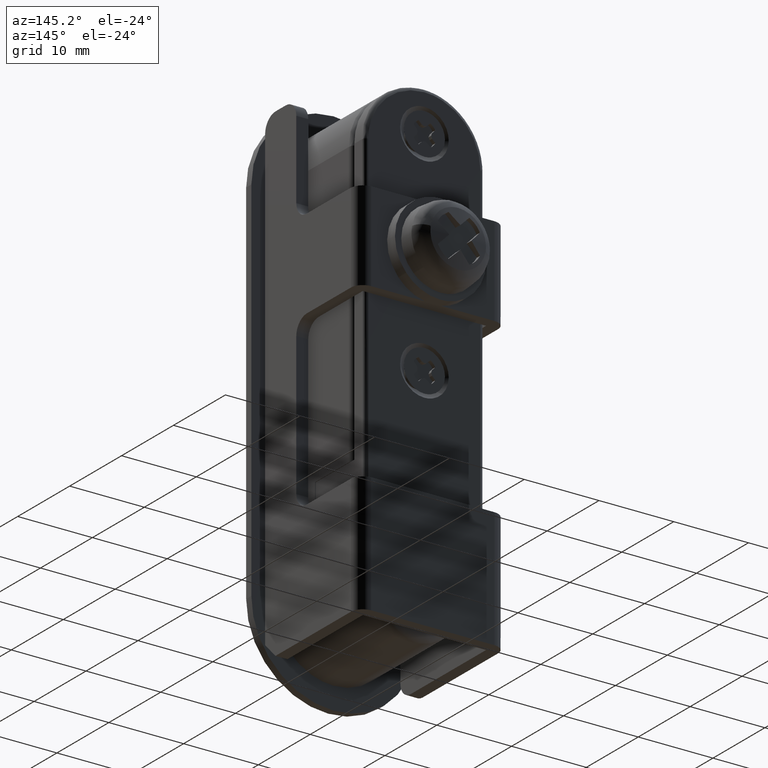
[diagram: clean part render]
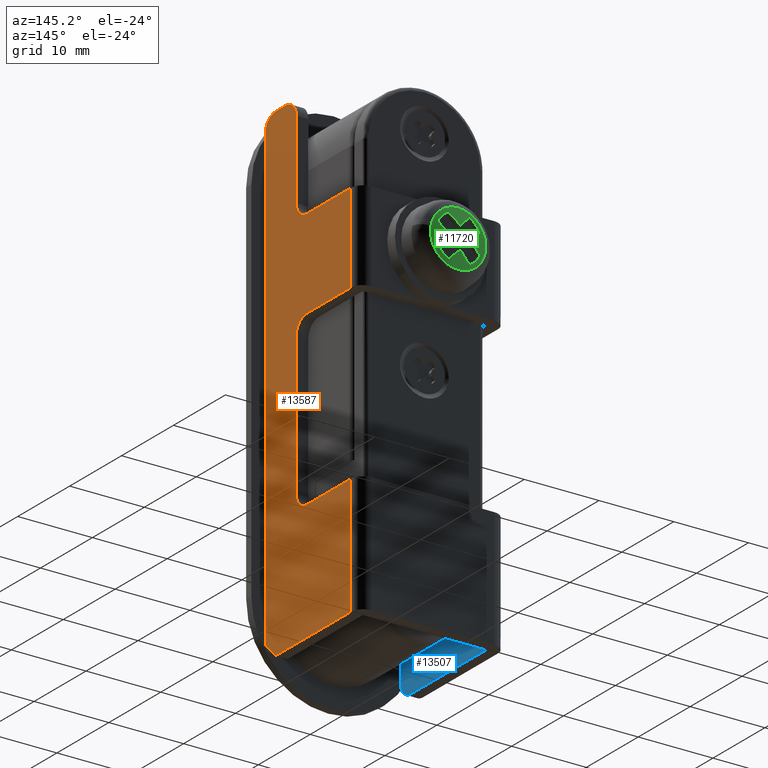
[diagram: same view with three faces highlighted in distinct colors, each labeled with its STEP entity id]
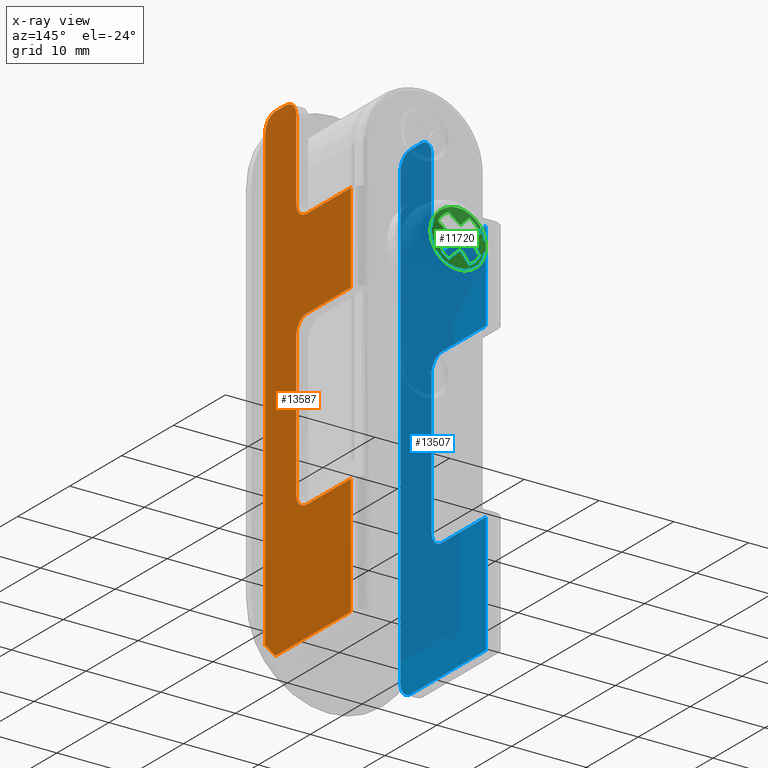
[diagram: x-ray of the same camera — body ghosted, the three highlighted faces saturated]
A machine part, auxiliary view with three faces highlighted in distinct colors.
The next image is the same camera in x-ray (body ghosted, the three faces saturated) — at least one of them is partly hidden behind the body in this view.
Their STEP definitions:

[orange] entity #13587 — the highlighted face is a freeform B-spline surface patch.
#12319=CARTESIAN_POINT('',(9.850000000089731,1.500000000049254,21.000000000388500));
#12320=VERTEX_POINT('',#12319);
#12326=CARTESIAN_POINT('',(9.850000000089731,1.500000000036180,2.000000000367890));
#12327=VERTEX_POINT('',#12326);
#12328=CARTESIAN_POINT('',(9.850000000089731,1.500000000036180,2.000000000367890));
#12329=CARTESIAN_POINT('',(9.850000000089731,1.500000000049254,21.000000000388500));
#12330=QUASI_UNIFORM_CURVE('',1,(#12328,#12329),.UNSPECIFIED.,.F.,.U.);
#12331=EDGE_CURVE('',#12327,#12320,#12330,.T.);
#12357=CARTESIAN_POINT('',(9.850000000089731,3.500000000034760,3.676881E-010));
#12358=VERTEX_POINT('',#12357);
#12378=CARTESIAN_POINT('',(9.850000000089731,1.500000000036180,2.000000000367890));
#12379=CARTESIAN_POINT('',(9.850000000089738,1.499984994598414,1.869106311978964));
#12380=CARTESIAN_POINT('',(9.850000000089725,1.527394882572928,1.590943611899807));
#12381=CARTESIAN_POINT('',(9.850000000089745,1.641735562585060,1.229986841329023));
#12382=CARTESIAN_POINT('',(9.850000000089731,1.835105440489092,0.868246416003327));
#12383=CARTESIAN_POINT('',(9.850000000089722,2.148769064056445,0.485820147811216));
#12384=CARTESIAN_POINT('',(9.850000000089763,2.604358348147121,0.181376499938010));
#12385=CARTESIAN_POINT('',(9.850000000089699,3.090957658884036,0.027417052987410));
#12386=CARTESIAN_POINT('',(9.850000000089787,3.369106552272606,-0.000015096700052));
#12387=CARTESIAN_POINT('',(9.850000000089731,3.500000000034760,3.676881E-010));
#12388=B_SPLINE_CURVE_WITH_KNOTS('',3,(#12378,#12379,#12380,#12381,#12382,#12383,#12384,#12385,#12386,#12387),.UNSPECIFIED.,.F.,.U.,(4,1,1,1,1,1,1,4),(0.000000054409977,0.392692200529610,0.834507428879825,1.129053298827527,1.619919496222785,2.307164564596149,2.748979510271204,3.141671488669639),.UNSPECIFIED.);
#12389=EDGE_CURVE('',#12327,#12358,#12388,.T.);
#12444=CARTESIAN_POINT('',(9.850000000089780,-4.499999999950746,-13.999999999576980));
#12445=VERTEX_POINT('',#12444);
#12451=CARTESIAN_POINT('',(9.850000000089731,-4.499999999950746,47.500000000374300));
#12452=VERTEX_POINT('',#12451);
#12453=CARTESIAN_POINT('',(9.850000000089731,-4.499999999950746,47.500000000374300));
#12454=CARTESIAN_POINT('',(9.850000000089780,-4.499999999950746,-13.999999999576980));
#12455=QUASI_UNIFORM_CURVE('',1,(#12453,#12454),.UNSPECIFIED.,.F.,.U.);
#12456=EDGE_CURVE('',#12452,#12445,#12455,.T.);
#12496=CARTESIAN_POINT('',(9.850000000089731,-2.499999999950746,49.500000000374300));
#12497=VERTEX_POINT('',#12496);
#12498=CARTESIAN_POINT('',(9.850000000089731,-2.499999999950746,49.500000000374300));
#12499=CARTESIAN_POINT('',(9.850000000089734,-2.712727556908472,49.500116170624217));
#12500=CARTESIAN_POINT('',(9.850000000089729,-3.056259100858302,49.444643357805347));
#12501=CARTESIAN_POINT('',(9.850000000089745,-3.492159805204128,49.251386304483923));
#12502=CARTESIAN_POINT('',(9.850000000089706,-3.814767357079327,49.024181566197278));
#12503=CARTESIAN_POINT('',(9.850000000089722,-4.086860187340050,48.738400088833309));
#12504=CARTESIAN_POINT('',(9.850000000089739,-4.280357651125520,48.432803134382382));
#12505=CARTESIAN_POINT('',(9.850000000089729,-4.449925496113697,48.023535834222997));
#12506=CARTESIAN_POINT('',(9.850000000089725,-4.500114318585584,47.712727915922962));
#12507=CARTESIAN_POINT('',(9.850000000089731,-4.499999999950746,47.500000000374300));
#12508=B_SPLINE_CURVE_WITH_KNOTS('',3,(#12498,#12499,#12500,#12501,#12502,#12503,#12504,#12505,#12506,#12507),.UNSPECIFIED.,.F.,.U.,(4,1,1,1,1,1,1,4),(0.000000054412217,0.638149096915154,1.030871407060215,1.423581817503625,1.816261475136498,2.208983504591311,2.503523754813277,3.141671488670173),.UNSPECIFIED.);
#12509=EDGE_CURVE('',#12497,#12452,#12508,.T.);
#12532=CARTESIAN_POINT('',(9.850000000089731,-0.499999999971922,49.500000000374300));
#12533=VERTEX_POINT('',#12532);
#12534=CARTESIAN_POINT('',(9.850000000089731,-0.499999999971922,49.500000000374300));
#12535=CARTESIAN_POINT('',(9.850000000089731,-2.499999999950746,49.500000000374300));
#12536=QUASI_UNIFORM_CURVE('',1,(#12534,#12535),.UNSPECIFIED.,.F.,.U.);
#12537=EDGE_CURVE('',#12533,#12497,#12536,.T.);
#12577=CARTESIAN_POINT('',(9.850000000089731,1.500000000028079,47.500000000374300));
#12578=VERTEX_POINT('',#12577);
#12579=CARTESIAN_POINT('',(9.850000000089731,1.500000000028079,47.500000000374300));
#12580=CARTESIAN_POINT('',(9.850000000089725,1.500014807483300,47.630893907357652));
#12581=CARTESIAN_POINT('',(9.850000000089757,1.472604787105215,47.909056141708461));
#12582=CARTESIAN_POINT('',(9.850000000089711,1.358264443506781,48.270013273980467));
#12583=CARTESIAN_POINT('',(9.850000000089743,1.164904708573855,48.631768437473788));
#12584=CARTESIAN_POINT('',(9.850000000089750,0.913917864066613,48.937616612797733));
#12585=CARTESIAN_POINT('',(9.850000000089711,0.576897076744367,49.200588480369163));
#12586=CARTESIAN_POINT('',(9.850000000089764,0.121642298828110,49.429812520241320));
#12587=CARTESIAN_POINT('',(9.850000000089722,-0.254523831925844,49.500223144607190));
#12588=CARTESIAN_POINT('',(9.850000000089731,-0.499999999971922,49.500000000374300));
#12589=B_SPLINE_CURVE_WITH_KNOTS('',3,(#12579,#12580,#12581,#12582,#12583,#12584,#12585,#12586,#12587,#12588),.UNSPECIFIED.,.F.,.U.,(4,1,1,1,1,1,1,4),(0.000000054412644,0.392692200531866,0.834507428881887,1.129053298829563,1.619919496224594,2.012618185352789,2.405342694808420,3.141671488670133),.UNSPECIFIED.);
#12590=EDGE_CURVE('',#12578,#12533,#12589,.T.);
#12613=CARTESIAN_POINT('',(9.850000000089731,1.500000000029359,37.000000000388397));
#12614=VERTEX_POINT('',#12613);
#12615=CARTESIAN_POINT('',(9.850000000089731,1.500000000029359,37.000000000388397));
#12616=CARTESIAN_POINT('',(9.850000000089731,1.500000000028079,47.500000000374300));
#12617=QUASI_UNIFORM_CURVE('',1,(#12615,#12616),.UNSPECIFIED.,.F.,.U.);
#12618=EDGE_CURVE('',#12614,#12578,#12617,.T.);
#12808=CARTESIAN_POINT('',(9.850000000089780,12.000000000058160,3.630478E-010));
#12809=VERTEX_POINT('',#12808);
#12810=CARTESIAN_POINT('',(9.850000000089780,12.000000000058160,3.630478E-010));
#12811=CARTESIAN_POINT('',(9.850000000089731,3.500000000034760,3.676881E-010));
#12812=QUASI_UNIFORM_CURVE('',1,(#12810,#12811),.UNSPECIFIED.,.F.,.U.);
#12813=EDGE_CURVE('',#12809,#12358,#12812,.T.);
#12836=CARTESIAN_POINT('',(9.850000000089780,-2.499999999950746,-15.999999999577099));
#12837=VERTEX_POINT('',#12836);
#12838=CARTESIAN_POINT('',(9.850000000089780,12.000000000075760,-15.999999999578201));
#12839=VERTEX_POINT('',#12838);
#12840=CARTESIAN_POINT('',(9.850000000089780,-2.499999999950746,-15.999999999577099));
#12841=CARTESIAN_POINT('',(9.850000000089780,12.000000000075760,-15.999999999578201));
#12842=QUASI_UNIFORM_CURVE('',1,(#12840,#12841),.UNSPECIFIED.,.F.,.U.);
#12843=EDGE_CURVE('',#12837,#12839,#12842,.T.);
#13173=CARTESIAN_POINT('',(9.850000000089780,-4.499999999950746,-13.999999999576980));
#13174=CARTESIAN_POINT('',(9.850000000089780,-2.499999999950746,-15.999999999577099));
#13175=QUASI_UNIFORM_CURVE('',1,(#13173,#13174),.UNSPECIFIED.,.F.,.U.);
#13176=EDGE_CURVE('',#12445,#12837,#13175,.T.);
#13242=CARTESIAN_POINT('',(9.850000000089780,12.000000000049280,23.000000000397002));
#13243=VERTEX_POINT('',#13242);
#13263=CARTESIAN_POINT('',(9.850000000089780,12.000000000049280,35.000000000397208));
#13264=VERTEX_POINT('',#13263);
#13277=CARTESIAN_POINT('',(9.850000000089780,12.000000000049280,23.000000000397002));
#13278=CARTESIAN_POINT('',(9.850000000089780,12.000000000049280,35.000000000397208));
#13279=QUASI_UNIFORM_CURVE('',1,(#13277,#13278),.UNSPECIFIED.,.F.,.U.);
#13280=EDGE_CURVE('',#13243,#13264,#13279,.T.);
#13302=CARTESIAN_POINT('',(9.850000000089780,12.000000000075760,-15.999999999578201));
#13303=CARTESIAN_POINT('',(9.850000000089780,12.000000000058160,3.630478E-010));
#13304=QUASI_UNIFORM_CURVE('',1,(#13302,#13303),.UNSPECIFIED.,.F.,.U.);
#13305=EDGE_CURVE('',#12839,#12809,#13304,.T.);
#13528=CARTESIAN_POINT('',(9.850000000089780,-5.324174967971869,52.771724873420233));
#13529=CARTESIAN_POINT('',(9.850000000089780,12.824175410661370,52.771724873420233));
#13530=CARTESIAN_POINT('',(9.850000000089780,-5.324174967971869,-19.271726629471019));
#13531=CARTESIAN_POINT('',(9.850000000089780,12.824175410661370,-19.271726629471019));
#13532=B_SPLINE_SURFACE_WITH_KNOTS('',1,1,((#13528,#13530),(#13529,#13531)),.UNSPECIFIED.,.F.,.F.,.U.,(2,2),(2,2),(0.0,18.148350378633239),(0.0,72.043451502891244),.UNSPECIFIED.);
#13533=ORIENTED_EDGE('',*,*,#12456,.T.);
#13534=ORIENTED_EDGE('',*,*,#13176,.T.);
#13535=ORIENTED_EDGE('',*,*,#12843,.T.);
#13536=ORIENTED_EDGE('',*,*,#13305,.T.);
#13537=ORIENTED_EDGE('',*,*,#12813,.T.);
#13538=ORIENTED_EDGE('',*,*,#12389,.F.);
#13539=ORIENTED_EDGE('',*,*,#12331,.T.);
#13540=CARTESIAN_POINT('',(9.850000000089731,3.500000000049170,23.000000000388500));
#13541=VERTEX_POINT('',#13540);
#13542=CARTESIAN_POINT('',(9.850000000089731,3.500000000049170,23.000000000388500));
#13543=CARTESIAN_POINT('',(9.850000000089738,3.320006687696226,23.000066302652609));
#13544=CARTESIAN_POINT('',(9.850000000089729,3.041885127216607,22.962178378040331));
#13545=CARTESIAN_POINT('',(9.850000000089729,2.655690986413911,22.823980072735669));
#13546=CARTESIAN_POINT('',(9.850000000089750,2.283677432699945,22.613359871885699));
#13547=CARTESIAN_POINT('',(9.850000000089718,1.948289041281439,22.293999029544580));
#13548=CARTESIAN_POINT('',(9.850000000089722,1.719646558237900,21.932797831038460));
#13549=CARTESIAN_POINT('',(9.850000000089725,1.550074189398897,21.523536463461799));
#13550=CARTESIAN_POINT('',(9.850000000089679,1.499886231826632,21.212728225495091));
#13551=CARTESIAN_POINT('',(9.850000000089731,1.500000000049254,21.000000000388500));
#13552=B_SPLINE_CURVE_WITH_KNOTS('',3,(#13542,#13543,#13544,#13545,#13546,#13547,#13548,#13549,#13550,#13551),.UNSPECIFIED.,.F.,.U.,(4,1,1,1,1,1,1,4),(0.000000054410605,0.539966365235176,0.834507428880339,1.227232851409178,1.816261475136158,2.208983504591194,2.503523754813182,3.141671488670062),.UNSPECIFIED.);
#13553=EDGE_CURVE('',#13541,#12320,#13552,.T.);
#13554=ORIENTED_EDGE('',*,*,#13553,.F.);
#13555=CARTESIAN_POINT('',(9.850000000089731,3.500000000049170,23.000000000388500));
#13556=CARTESIAN_POINT('',(9.850000000089780,12.000000000049280,23.000000000397002));
#13557=QUASI_UNIFORM_CURVE('',1,(#13555,#13556),.UNSPECIFIED.,.F.,.U.);
#13558=EDGE_CURVE('',#13541,#13243,#13557,.T.);
#13559=ORIENTED_EDGE('',*,*,#13558,.T.);
#13560=ORIENTED_EDGE('',*,*,#13280,.T.);
#13561=CARTESIAN_POINT('',(9.850000000089731,3.500000000031575,35.000000000388802));
#13562=VERTEX_POINT('',#13561);
#13563=CARTESIAN_POINT('',(9.850000000089780,12.000000000049280,35.000000000397208));
#13564=CARTESIAN_POINT('',(9.850000000089731,3.500000000031575,35.000000000388802));
#13565=QUASI_UNIFORM_CURVE('',1,(#13563,#13564),.UNSPECIFIED.,.F.,.U.);
#13566=EDGE_CURVE('',#13264,#13562,#13565,.T.);
#13567=ORIENTED_EDGE('',*,*,#13566,.T.);
#13568=CARTESIAN_POINT('',(9.850000000089731,1.500000000029359,37.000000000388397));
#13569=CARTESIAN_POINT('',(9.850000000089729,1.499884098323229,36.787271884995867));
#13570=CARTESIAN_POINT('',(9.850000000089732,1.555356671448052,36.443741328800222));
#13571=CARTESIAN_POINT('',(9.850000000089739,1.748613345025621,36.007840513279888));
#13572=CARTESIAN_POINT('',(9.850000000089713,1.975818712095903,35.685232295627607));
#13573=CARTESIAN_POINT('',(9.850000000089743,2.261600375961293,35.413139857271268));
#13574=CARTESIAN_POINT('',(9.850000000089722,2.567196012363572,35.219642585638198));
#13575=CARTESIAN_POINT('',(9.850000000089766,2.976465274556203,35.050073914458970));
#13576=CARTESIAN_POINT('',(9.850000000089681,3.287271057241965,34.999886058818980));
#13577=CARTESIAN_POINT('',(9.850000000089731,3.500000000031575,35.000000000388802));
#13578=B_SPLINE_CURVE_WITH_KNOTS('',3,(#13568,#13569,#13570,#13571,#13572,#13573,#13574,#13575,#13576,#13577),.UNSPECIFIED.,.F.,.U.,(4,1,1,1,1,1,1,4),(0.000000054406451,0.638149096911394,1.030871407057555,1.423581817501873,1.816261475135568,2.208983504591103,2.503523754813400,3.141671488670932),.UNSPECIFIED.);
#13579=EDGE_CURVE('',#12614,#13562,#13578,.T.);
#13580=ORIENTED_EDGE('',*,*,#13579,.F.);
#13581=ORIENTED_EDGE('',*,*,#12618,.T.);
#13582=ORIENTED_EDGE('',*,*,#12590,.T.);
#13583=ORIENTED_EDGE('',*,*,#12537,.T.);
#13584=ORIENTED_EDGE('',*,*,#12509,.T.);
#13585=EDGE_LOOP('',(#13533,#13534,#13535,#13536,#13537,#13538,#13539,#13554,#13559,#13560,#13567,#13580,#13581,#13582,#13583,#13584));
#13586=FACE_OUTER_BOUND('',#13585,.T.);
#13587=ADVANCED_FACE('',(#13586),#13532,.F.);

[blue] entity #13507 — the highlighted face is a freeform B-spline surface patch.
#12283=CARTESIAN_POINT('',(-8.249999999878890,12.000000000058160,3.630478E-010));
#12284=VERTEX_POINT('',#12283);
#12290=CARTESIAN_POINT('',(-8.249999999878890,12.000000000075760,-15.999999999578201));
#12291=VERTEX_POINT('',#12290);
#12292=CARTESIAN_POINT('',(-8.249999999878890,12.000000000075760,-15.999999999578201));
#12293=CARTESIAN_POINT('',(-8.249999999878890,12.000000000058160,3.630478E-010));
#12294=QUASI_UNIFORM_CURVE('',1,(#12292,#12293),.UNSPECIFIED.,.F.,.U.);
#12295=EDGE_CURVE('',#12291,#12284,#12294,.T.);
#12642=CARTESIAN_POINT('',(-8.249999999878849,3.500000000049170,23.000000000388500));
#12643=VERTEX_POINT('',#12642);
#12644=CARTESIAN_POINT('',(-8.249999999878849,1.500000000049256,21.000000000388500));
#12645=VERTEX_POINT('',#12644);
#12646=CARTESIAN_POINT('',(-8.249999999878849,3.500000000049170,23.000000000388500));
#12647=CARTESIAN_POINT('',(-8.249999999878847,3.320007174509709,23.000065977941471));
#12648=CARTESIAN_POINT('',(-8.249999999878861,3.041883600465573,22.962179396403801));
#12649=CARTESIAN_POINT('',(-8.249999999878826,2.655680854213044,22.823991638127051));
#12650=CARTESIAN_POINT('',(-8.249999999878893,2.340951967477180,22.645712019352299));
#12651=CARTESIAN_POINT('',(-8.249999999878819,2.042185232806982,22.387966490191172));
#12652=CARTESIAN_POINT('',(-8.249999999878860,1.748720539027955,22.012131263663179));
#12653=CARTESIAN_POINT('',(-8.249999999878874,1.546365724212139,21.539981150195100));
#12654=CARTESIAN_POINT('',(-8.249999999878805,1.499977789193953,21.163616262940941));
#12655=CARTESIAN_POINT('',(-8.249999999878849,1.500000000049256,21.000000000388500));
#12656=B_SPLINE_CURVE_WITH_KNOTS('',3,(#12646,#12647,#12648,#12649,#12650,#12651,#12652,#12653,#12654,#12655),.UNSPECIFIED.,.F.,.U.,(4,1,1,1,1,1,1,4),(0.000000054410605,0.539966365235176,0.834507428880339,1.227232851409178,1.619919496223200,2.012618185351761,2.650798048094276,3.141671488670062),.UNSPECIFIED.);
#12657=EDGE_CURVE('',#12643,#12645,#12656,.T.);
#12695=CARTESIAN_POINT('',(-8.249999999878849,1.500000000036181,2.000000000367890));
#12696=VERTEX_POINT('',#12695);
#12697=CARTESIAN_POINT('',(-8.249999999878849,1.500000000036181,2.000000000367890));
#12698=CARTESIAN_POINT('',(-8.249999999878849,1.500000000049256,21.000000000388500));
#12699=QUASI_UNIFORM_CURVE('',1,(#12697,#12698),.UNSPECIFIED.,.F.,.U.);
#12700=EDGE_CURVE('',#12696,#12645,#12699,.T.);
#12731=CARTESIAN_POINT('',(-8.249999999878849,3.500000000034761,3.676881E-010));
#12732=VERTEX_POINT('',#12731);
#12733=CARTESIAN_POINT('',(-8.249999999878849,1.500000000036181,2.000000000367890));
#12734=CARTESIAN_POINT('',(-8.249999999878851,1.499934889875306,1.820008973315520));
#12735=CARTESIAN_POINT('',(-8.249999999878847,1.542263331148013,1.509154239738384));
#12736=CARTESIAN_POINT('',(-8.249999999878847,1.690206540662509,1.125658543325652));
#12737=CARTESIAN_POINT('',(-8.249999999878860,1.875789630152411,0.816076393680036));
#12738=CARTESIAN_POINT('',(-8.249999999878837,2.176387786480334,0.467358495723577));
#12739=CARTESIAN_POINT('',(-8.249999999878879,2.604356317562502,0.181382289969196));
#12740=CARTESIAN_POINT('',(-8.249999999878812,3.090958050478742,0.027416035071350));
#12741=CARTESIAN_POINT('',(-8.249999999878908,3.369106529890368,-0.000015114395948));
#12742=CARTESIAN_POINT('',(-8.249999999878849,3.500000000034761,3.676881E-010));
#12743=B_SPLINE_CURVE_WITH_KNOTS('',3,(#12733,#12734,#12735,#12736,#12737,#12738,#12739,#12740,#12741,#12742),.UNSPECIFIED.,.F.,.U.,(4,1,1,1,1,1,1,4),(0.000000054409977,0.539966365234618,0.932688773066051,1.227232851408755,1.619919496222785,2.307164564596149,2.748979510271204,3.141671488669639),.UNSPECIFIED.);
#12744=EDGE_CURVE('',#12696,#12732,#12743,.T.);
#12796=CARTESIAN_POINT('',(-8.249999999878890,12.000000000058160,3.630478E-010));
#12797=CARTESIAN_POINT('',(-8.249999999878849,3.500000000034761,3.676881E-010));
#12798=QUASI_UNIFORM_CURVE('',1,(#12796,#12797),.UNSPECIFIED.,.F.,.U.);
#12799=EDGE_CURVE('',#12284,#12732,#12798,.T.);
#12858=CARTESIAN_POINT('',(-8.249999999878890,-2.499999999950895,-15.999999999577099));
#12859=VERTEX_POINT('',#12858);
#12860=CARTESIAN_POINT('',(-8.249999999878890,-2.499999999950895,-15.999999999577099));
#12861=CARTESIAN_POINT('',(-8.249999999878890,12.000000000075760,-15.999999999578201));
#12862=QUASI_UNIFORM_CURVE('',1,(#12860,#12861),.UNSPECIFIED.,.F.,.U.);
#12863=EDGE_CURVE('',#12859,#12291,#12862,.T.);
#12921=CARTESIAN_POINT('',(-8.249999999878890,-4.499999999950744,-13.999999999577120));
#12922=VERTEX_POINT('',#12921);
#12928=CARTESIAN_POINT('',(-8.249999999878849,-4.499999999950744,47.500000000374300));
#12929=VERTEX_POINT('',#12928);
#12930=CARTESIAN_POINT('',(-8.249999999878849,-4.499999999950744,47.500000000374300));
#12931=CARTESIAN_POINT('',(-8.249999999878890,-4.499999999950744,-13.999999999577120));
#12932=QUASI_UNIFORM_CURVE('',1,(#12930,#12931),.UNSPECIFIED.,.F.,.U.);
#12933=EDGE_CURVE('',#12929,#12922,#12932,.T.);
#12958=CARTESIAN_POINT('',(-8.249999999878849,-2.499999999950745,49.500000000374300));
#12959=VERTEX_POINT('',#12958);
#12960=CARTESIAN_POINT('',(-8.249999999878849,-2.499999999950745,49.500000000374300));
#12961=CARTESIAN_POINT('',(-8.249999999878851,-2.712727556908470,49.500116170624217));
#12962=CARTESIAN_POINT('',(-8.249999999878845,-3.056259100858301,49.444643357805340));
#12963=CARTESIAN_POINT('',(-8.249999999878867,-3.492159805204129,49.251386304483923));
#12964=CARTESIAN_POINT('',(-8.249999999878826,-3.814767357079324,49.024181566197242));
#12965=CARTESIAN_POINT('',(-8.249999999878849,-4.086860187340051,48.738400088833323));
#12966=CARTESIAN_POINT('',(-8.249999999878860,-4.280357651125518,48.432803134382382));
#12967=CARTESIAN_POINT('',(-8.249999999878847,-4.449925496113695,48.023535834222997));
#12968=CARTESIAN_POINT('',(-8.249999999878847,-4.500114318585582,47.712727915922962));
#12969=CARTESIAN_POINT('',(-8.249999999878849,-4.499999999950744,47.500000000374300));
#12970=B_SPLINE_CURVE_WITH_KNOTS('',3,(#12960,#12961,#12962,#12963,#12964,#12965,#12966,#12967,#12968,#12969),.UNSPECIFIED.,.F.,.U.,(4,1,1,1,1,1,1,4),(0.000000054412217,0.638149096915154,1.030871407060215,1.423581817503625,1.816261475136498,2.208983504591311,2.503523754813277,3.141671488670173),.UNSPECIFIED.);
#12971=EDGE_CURVE('',#12959,#12929,#12970,.T.);
#13002=CARTESIAN_POINT('',(-8.249999999878849,-0.499999999971921,49.500000000374300));
#13003=VERTEX_POINT('',#13002);
#13004=CARTESIAN_POINT('',(-8.249999999878849,-0.499999999971921,49.500000000374300));
#13005=CARTESIAN_POINT('',(-8.249999999878849,-2.499999999950745,49.500000000374300));
#13006=QUASI_UNIFORM_CURVE('',1,(#13004,#13005),.UNSPECIFIED.,.F.,.U.);
#13007=EDGE_CURVE('',#13003,#12959,#13006,.T.);
#13039=CARTESIAN_POINT('',(-8.249999999878849,1.500000000028080,47.500000000374300));
#13040=VERTEX_POINT('',#13039);
#13041=CARTESIAN_POINT('',(-8.249999999878849,1.500000000028080,47.500000000374300));
#13042=CARTESIAN_POINT('',(-8.249999999878845,1.500014807483301,47.630893907357667));
#13043=CARTESIAN_POINT('',(-8.249999999878865,1.472604787105216,47.909056141708447));
#13044=CARTESIAN_POINT('',(-8.249999999878829,1.358264443506781,48.270013273980481));
#13045=CARTESIAN_POINT('',(-8.249999999878863,1.164904708573856,48.631768437473823));
#13046=CARTESIAN_POINT('',(-8.249999999878860,0.913917864066614,48.937616612797733));
#13047=CARTESIAN_POINT('',(-8.249999999878835,0.576897076744368,49.200588480369149));
#13048=CARTESIAN_POINT('',(-8.249999999878865,0.121642298828112,49.429812520241349));
#13049=CARTESIAN_POINT('',(-8.249999999878847,-0.254523831925843,49.500223144607212));
#13050=CARTESIAN_POINT('',(-8.249999999878849,-0.499999999971921,49.500000000374300));
#13051=B_SPLINE_CURVE_WITH_KNOTS('',3,(#13041,#13042,#13043,#13044,#13045,#13046,#13047,#13048,#13049,#13050),.UNSPECIFIED.,.F.,.U.,(4,1,1,1,1,1,1,4),(0.000000054412644,0.392692200531866,0.834507428881887,1.129053298829563,1.619919496224594,2.012618185352789,2.405342694808420,3.141671488670133),.UNSPECIFIED.);
#13052=EDGE_CURVE('',#13040,#13003,#13051,.T.);
#13083=CARTESIAN_POINT('',(-8.249999999878849,1.500000000029361,37.000000000388397));
#13084=VERTEX_POINT('',#13083);
#13085=CARTESIAN_POINT('',(-8.249999999878849,1.500000000029361,37.000000000388397));
#13086=CARTESIAN_POINT('',(-8.249999999878849,1.500000000028080,47.500000000374300));
#13087=QUASI_UNIFORM_CURVE('',1,(#13085,#13086),.UNSPECIFIED.,.F.,.U.);
#13088=EDGE_CURVE('',#13084,#13040,#13087,.T.);
#13210=CARTESIAN_POINT('',(-8.249999999878890,-4.499999999950744,-13.999999999577120));
#13211=CARTESIAN_POINT('',(-8.249999999878883,-4.500108861925250,-14.212724566619050));
#13212=CARTESIAN_POINT('',(-8.249999999878869,-4.434117124999916,-14.621711738946811));
#13213=CARTESIAN_POINT('',(-8.249999999878845,-4.159021029512899,-15.168419779448509));
#13214=CARTESIAN_POINT('',(-8.249999999878860,-3.794003835345818,-15.551722060540831));
#13215=CARTESIAN_POINT('',(-8.249999999878842,-3.432793961634165,-15.780348864264511));
#13216=CARTESIAN_POINT('',(-8.249999999878897,-3.023533423126786,-15.949925098733340));
#13217=CARTESIAN_POINT('',(-8.249999999878863,-2.712729197706300,-16.000114381214910));
#13218=CARTESIAN_POINT('',(-8.249999999878890,-2.499999999950895,-15.999999999577099));
#13219=B_SPLINE_CURVE_WITH_KNOTS('',3,(#13210,#13211,#13212,#13213,#13214,#13215,#13216,#13217,#13218),.UNSPECIFIED.,.F.,.U.,(4,1,1,1,1,1,4),(0.000000054411250,0.638149096914563,1.227232851409632,1.816261475136454,2.208983504591392,2.503523754813321,3.141671488670050),.UNSPECIFIED.);
#13220=EDGE_CURVE('',#12922,#12859,#13219,.T.);
#13454=CARTESIAN_POINT('',(-8.249999999878890,-5.324174967971867,52.771724873420233));
#13455=CARTESIAN_POINT('',(-8.249999999878890,12.824175410661370,52.771724873420233));
#13456=CARTESIAN_POINT('',(-8.249999999878890,-5.324174967971867,-19.271726629471019));
#13457=CARTESIAN_POINT('',(-8.249999999878890,12.824175410661370,-19.271726629471019));
#13458=B_SPLINE_SURFACE_WITH_KNOTS('',1,1,((#13454,#13456),(#13455,#13457)),.UNSPECIFIED.,.F.,.F.,.U.,(2,2),(2,2),(0.0,18.148350378633239),(0.0,72.043451502891244),.UNSPECIFIED.);
#13459=ORIENTED_EDGE('',*,*,#12933,.T.);
#13460=ORIENTED_EDGE('',*,*,#13220,.T.);
#13461=ORIENTED_EDGE('',*,*,#12863,.T.);
#13462=ORIENTED_EDGE('',*,*,#12295,.T.);
#13463=ORIENTED_EDGE('',*,*,#12799,.T.);
#13464=ORIENTED_EDGE('',*,*,#12744,.F.);
#13465=ORIENTED_EDGE('',*,*,#12700,.T.);
#13466=ORIENTED_EDGE('',*,*,#12657,.F.);
#13467=CARTESIAN_POINT('',(-8.249999999878890,12.000000000049280,23.000000000397002));
#13468=VERTEX_POINT('',#13467);
#13469=CARTESIAN_POINT('',(-8.249999999878849,3.500000000049170,23.000000000388500));
#13470=CARTESIAN_POINT('',(-8.249999999878890,12.000000000049280,23.000000000397002));
#13471=QUASI_UNIFORM_CURVE('',1,(#13469,#13470),.UNSPECIFIED.,.F.,.U.);
#13472=EDGE_CURVE('',#12643,#13468,#13471,.T.);
#13473=ORIENTED_EDGE('',*,*,#13472,.T.);
#13474=CARTESIAN_POINT('',(-8.249999999878890,12.000000000049280,35.000000000397208));
#13475=VERTEX_POINT('',#13474);
#13476=CARTESIAN_POINT('',(-8.249999999878890,12.000000000049280,23.000000000397002));
#13477=CARTESIAN_POINT('',(-8.249999999878890,12.000000000049280,35.000000000397208));
#13478=QUASI_UNIFORM_CURVE('',1,(#13476,#13477),.UNSPECIFIED.,.F.,.U.);
#13479=EDGE_CURVE('',#13468,#13475,#13478,.T.);
#13480=ORIENTED_EDGE('',*,*,#13479,.T.);
#13481=CARTESIAN_POINT('',(-8.249999999878849,3.500000000031576,35.000000000388802));
#13482=VERTEX_POINT('',#13481);
#13483=CARTESIAN_POINT('',(-8.249999999878890,12.000000000049280,35.000000000397208));
#13484=CARTESIAN_POINT('',(-8.249999999878849,3.500000000031576,35.000000000388802));
#13485=QUASI_UNIFORM_CURVE('',1,(#13483,#13484),.UNSPECIFIED.,.F.,.U.);
#13486=EDGE_CURVE('',#13475,#13482,#13485,.T.);
#13487=ORIENTED_EDGE('',*,*,#13486,.T.);
#13488=CARTESIAN_POINT('',(-8.249999999878849,1.500000000029361,37.000000000388397));
#13489=CARTESIAN_POINT('',(-8.249999999878847,1.499884098323230,36.787271884995867));
#13490=CARTESIAN_POINT('',(-8.249999999878847,1.555356671448053,36.443741328800222));
#13491=CARTESIAN_POINT('',(-8.249999999878854,1.748613345025622,36.007840513279888));
#13492=CARTESIAN_POINT('',(-8.249999999878838,1.975818712095905,35.685232295627607));
#13493=CARTESIAN_POINT('',(-8.249999999878849,2.261600375961294,35.413139857271268));
#13494=CARTESIAN_POINT('',(-8.249999999878845,2.567196012363573,35.219642585638198));
#13495=CARTESIAN_POINT('',(-8.249999999878869,2.976465274556204,35.050073914458970));
#13496=CARTESIAN_POINT('',(-8.249999999878815,3.287271057241966,34.999886058818980));
#13497=CARTESIAN_POINT('',(-8.249999999878849,3.500000000031576,35.000000000388802));
#13498=B_SPLINE_CURVE_WITH_KNOTS('',3,(#13488,#13489,#13490,#13491,#13492,#13493,#13494,#13495,#13496,#13497),.UNSPECIFIED.,.F.,.U.,(4,1,1,1,1,1,1,4),(0.000000054406451,0.638149096911394,1.030871407057555,1.423581817501873,1.816261475135568,2.208983504591103,2.503523754813400,3.141671488670932),.UNSPECIFIED.);
#13499=EDGE_CURVE('',#13084,#13482,#13498,.T.);
#13500=ORIENTED_EDGE('',*,*,#13499,.F.);
#13501=ORIENTED_EDGE('',*,*,#13088,.T.);
#13502=ORIENTED_EDGE('',*,*,#13052,.T.);
#13503=ORIENTED_EDGE('',*,*,#13007,.T.);
#13504=ORIENTED_EDGE('',*,*,#12971,.T.);
#13505=EDGE_LOOP('',(#13459,#13460,#13461,#13462,#13463,#13464,#13465,#13466,#13473,#13480,#13487,#13500,#13501,#13502,#13503,#13504));
#13506=FACE_OUTER_BOUND('',#13505,.T.);
#13507=ADVANCED_FACE('',(#13506),#13458,.F.);

[green] entity #11720 — the highlighted face is a freeform B-spline surface patch.
#11110=CARTESIAN_POINT('',(-2.826300061398044,18.641022689071999,30.390873093152400));
#11111=VERTEX_POINT('',#11110);
#11118=CARTESIAN_POINT('',(-1.498359269334285,18.919578118651049,29.016263455361202));
#11119=VERTEX_POINT('',#11118);
#11125=CARTESIAN_POINT('',(-2.826300061398044,18.641022689071999,30.390873093152400));
#11126=CARTESIAN_POINT('',(-2.388830290726659,18.777857361318670,29.938028985492618));
#11127=CARTESIAN_POINT('',(-1.944766510788341,18.870999642028490,29.478359130220930));
#11128=CARTESIAN_POINT('',(-1.498359269334285,18.919578118651049,29.016263455361202));
#11129=B_SPLINE_CURVE_WITH_KNOTS('',3,(#11125,#11126,#11127,#11128),.UNSPECIFIED.,.F.,.U.,(4,4),(4.095888E-010,1.933018826147560),.UNSPECIFIED.);
#11130=EDGE_CURVE('',#11111,#11119,#11129,.T.);
#11142=CARTESIAN_POINT('',(-1.493409521865883,18.920119539759650,28.999999999393950));
#11143=VERTEX_POINT('',#11142);
#11149=CARTESIAN_POINT('',(-1.498359269334285,18.919578118651049,29.016263455361202));
#11150=CARTESIAN_POINT('',(-1.493409521865883,18.920119539759650,28.999999999393950));
#11151=QUASI_UNIFORM_CURVE('',1,(#11149,#11150),.UNSPECIFIED.,.F.,.U.);
#11152=EDGE_CURVE('',#11119,#11143,#11151,.T.);
#11164=CARTESIAN_POINT('',(-1.498359269334287,18.919578118648751,28.983736543426598));
#11165=VERTEX_POINT('',#11164);
#11171=CARTESIAN_POINT('',(-1.493409521865883,18.920119539759650,28.999999999393950));
#11172=CARTESIAN_POINT('',(-1.498359269334287,18.919578118648751,28.983736543426598));
#11173=QUASI_UNIFORM_CURVE('',1,(#11171,#11172),.UNSPECIFIED.,.F.,.U.);
#11174=EDGE_CURVE('',#11143,#11165,#11173,.T.);
#11186=CARTESIAN_POINT('',(-2.826300061397999,18.641022688869651,27.609126905635250));
#11187=VERTEX_POINT('',#11186);
#11193=CARTESIAN_POINT('',(-1.498359269334287,18.919578118648751,28.983736543426598));
#11194=CARTESIAN_POINT('',(-1.944766654031883,18.871006365068919,28.521640720289241));
#11195=CARTESIAN_POINT('',(-2.388829117910965,18.777850855932321,28.061972227327932));
#11196=CARTESIAN_POINT('',(-2.826300061397999,18.641022688869651,27.609126905635250));
#11197=B_SPLINE_CURVE_WITH_KNOTS('',3,(#11193,#11194,#11195,#11196),.UNSPECIFIED.,.F.,.U.,(4,4),(4.093625E-010,1.933018826176531),.UNSPECIFIED.);
#11198=EDGE_CURVE('',#11165,#11187,#11197,.T.);
#11219=CARTESIAN_POINT('',(-1.390873093758493,18.641022688982702,26.173699937995799));
#11220=VERTEX_POINT('',#11219);
#11226=CARTESIAN_POINT('',(-2.826300061397999,18.641022688869651,27.609126905635250));
#11227=CARTESIAN_POINT('',(-2.683827906560610,18.641022688903782,27.319283186648491));
#11228=CARTESIAN_POINT('',(-2.283605046384368,18.641022688961691,26.748498148054530));
#11229=CARTESIAN_POINT('',(-1.719426526527631,18.641022688982790,26.335075416590509));
#11230=CARTESIAN_POINT('',(-1.390873093758493,18.641022688982702,26.173699937995799));
#11231=B_SPLINE_CURVE_WITH_KNOTS('',3,(#11226,#11227,#11228,#11229,#11230),.UNSPECIFIED.,.F.,.U.,(4,1,4),(7.524243E-009,0.968866658056106,2.066915157405254),.UNSPECIFIED.);
#11232=EDGE_CURVE('',#11187,#11220,#11231,.T.);
#11244=CARTESIAN_POINT('',(-0.016263455967304,18.919578118549200,27.501640730059549));
#11245=VERTEX_POINT('',#11244);
#11251=CARTESIAN_POINT('',(-1.390873093758493,18.641022688982702,26.173699937995799));
#11252=CARTESIAN_POINT('',(-0.938027855743715,18.777859435053919,26.611170800645951));
#11253=CARTESIAN_POINT('',(-0.478359328113087,18.870997273955730,27.055233298017509));
#11254=CARTESIAN_POINT('',(-0.016263455967304,18.919578118549200,27.501640730059549));
#11255=B_SPLINE_CURVE_WITH_KNOTS('',3,(#11251,#11252,#11253,#11254),.UNSPECIFIED.,.F.,.U.,(4,4),(4.095999E-010,1.933018826140915),.UNSPECIFIED.);
#11256=EDGE_CURVE('',#11220,#11245,#11255,.T.);
#11268=CARTESIAN_POINT('',(8.874344E-016,18.920119539659350,27.506590477527901));
#11269=VERTEX_POINT('',#11268);
#11275=CARTESIAN_POINT('',(-0.016263455967304,18.919578118549200,27.501640730059549));
#11276=CARTESIAN_POINT('',(8.874344E-016,18.920119539659350,27.506590477527901));
#11277=QUASI_UNIFORM_CURVE('',1,(#11275,#11276),.UNSPECIFIED.,.F.,.U.);
#11278=EDGE_CURVE('',#11245,#11269,#11277,.T.);
#11290=CARTESIAN_POINT('',(0.016970562748499,18.919501140428700,27.500933623278250));
#11291=VERTEX_POINT('',#11290);
#11297=CARTESIAN_POINT('',(8.874344E-016,18.920119539659350,27.506590477527901));
#11298=CARTESIAN_POINT('',(0.016970562748499,18.919501140428700,27.500933623278250));
#11299=QUASI_UNIFORM_CURVE('',1,(#11297,#11298),.UNSPECIFIED.,.F.,.U.);
#11300=EDGE_CURVE('',#11269,#11291,#11299,.T.);
#11312=CARTESIAN_POINT('',(1.390873093687185,18.641022688783000,26.173699937960748));
#11313=VERTEX_POINT('',#11312);
#11319=CARTESIAN_POINT('',(0.016970562748499,18.919501140428700,27.500933623278250));
#11320=CARTESIAN_POINT('',(0.478827996144857,18.870902157081812,27.054764605015301));
#11321=CARTESIAN_POINT('',(0.938260203041722,18.777785814209320,26.610938432938369));
#11322=CARTESIAN_POINT('',(1.390873093687185,18.641022688783000,26.173699937960748));
#11323=B_SPLINE_CURVE_WITH_KNOTS('',3,(#11319,#11320,#11321,#11322),.UNSPECIFIED.,.F.,.U.,(4,4),(4.084697E-010,1.932015916885009),.UNSPECIFIED.);
#11324=EDGE_CURVE('',#11291,#11313,#11323,.T.);
#11345=CARTESIAN_POINT('',(2.826300063463582,18.641022688982702,27.609126909832600));
#11346=VERTEX_POINT('',#11345);
#11352=CARTESIAN_POINT('',(1.390873093687185,18.641022688783000,26.173699937960748));
#11353=CARTESIAN_POINT('',(1.680716851854370,18.641022688843229,26.316172281411461));
#11354=CARTESIAN_POINT('',(2.251501012147456,18.641022688945640,26.716393843666701));
#11355=CARTESIAN_POINT('',(2.664925544487861,18.641022688982819,27.280574475818138));
#11356=CARTESIAN_POINT('',(2.826300063463582,18.641022688982702,27.609126909832600));
#11357=B_SPLINE_CURVE_WITH_KNOTS('',3,(#11352,#11353,#11354,#11355,#11356),.UNSPECIFIED.,.F.,.U.,(4,1,4),(7.524771E-009,0.968866660286534,2.066915162163025),.UNSPECIFIED.);
#11358=EDGE_CURVE('',#11313,#11346,#11357,.T.);
#11370=CARTESIAN_POINT('',(1.499773482896731,18.919425814361400,28.983736543426598));
#11371=VERTEX_POINT('',#11370);
#11377=CARTESIAN_POINT('',(2.826300063463582,18.641022688982702,27.609126909832600));
#11378=CARTESIAN_POINT('',(2.389290895634096,18.777753354816038,28.061976495259380));
#11379=CARTESIAN_POINT('',(1.945705441829391,18.870860552542378,28.521640739500558));
#11380=CARTESIAN_POINT('',(1.499773482896731,18.919425814361400,28.983736543426598));
#11381=B_SPLINE_CURVE_WITH_KNOTS('',3,(#11377,#11378,#11379,#11380),.UNSPECIFIED.,.F.,.U.,(4,4),(4.086174E-010,1.932022445862772),.UNSPECIFIED.);
#11382=EDGE_CURVE('',#11346,#11371,#11381,.T.);
#11394=CARTESIAN_POINT('',(1.494116628647191,18.920043642228400,29.000707106175049));
#11395=VERTEX_POINT('',#11394);
#11401=CARTESIAN_POINT('',(1.499773482896731,18.919425814361400,28.983736543426598));
#11402=CARTESIAN_POINT('',(1.494116628647191,18.920043642228400,29.000707106175049));
#11403=QUASI_UNIFORM_CURVE('',1,(#11401,#11402),.UNSPECIFIED.,.F.,.U.);
#11404=EDGE_CURVE('',#11371,#11395,#11403,.T.);
#11416=CARTESIAN_POINT('',(1.499066376115481,18.919501140542948,29.016970562142252));
#11417=VERTEX_POINT('',#11416);
#11423=CARTESIAN_POINT('',(1.494116628647191,18.920043642228400,29.000707106175049));
#11424=CARTESIAN_POINT('',(1.499066376115481,18.919501140542948,29.016970562142252));
#11425=QUASI_UNIFORM_CURVE('',1,(#11423,#11424),.UNSPECIFIED.,.F.,.U.);
#11426=EDGE_CURVE('',#11395,#11417,#11425,.T.);
#11438=CARTESIAN_POINT('',(2.826300061433146,18.641022689095902,30.390873093081101));
#11439=VERTEX_POINT('',#11438);
#11445=CARTESIAN_POINT('',(1.499066376115481,18.919501140542948,29.016970562142252));
#11446=CARTESIAN_POINT('',(1.945235282045815,18.870908870146511,29.478827879256020));
#11447=CARTESIAN_POINT('',(2.389060127261852,18.777779427108172,29.938258712636330));
#11448=CARTESIAN_POINT('',(2.826300061433146,18.641022689095902,30.390873093081101));
#11449=B_SPLINE_CURVE_WITH_KNOTS('',3,(#11445,#11446,#11447,#11448),.UNSPECIFIED.,.F.,.U.,(4,4),(4.085796E-010,1.932015916856508),.UNSPECIFIED.);
#11450=EDGE_CURVE('',#11417,#11439,#11449,.T.);
#11471=CARTESIAN_POINT('',(1.390879038593995,18.641022688982702,31.826305803796561));
#11472=VERTEX_POINT('',#11471);
#11478=CARTESIAN_POINT('',(2.826300061433146,18.641022689095902,30.390873093081101));
#11479=CARTESIAN_POINT('',(2.721766288154219,18.641022689083329,30.603386080571820));
#11480=CARTESIAN_POINT('',(2.452760830777948,18.641022689056371,31.022903141546031));
#11481=CARTESIAN_POINT('',(1.951964298980021,18.641022689017479,31.503606192039001));
#11482=CARTESIAN_POINT('',(1.564736381112528,18.641022688993012,31.740754645835160));
#11483=CARTESIAN_POINT('',(1.390879038593995,18.641022688982702,31.826305803796561));
#11484=B_SPLINE_CURVE_WITH_KNOTS('',3,(#11478,#11479,#11480,#11481,#11482,#11483),.UNSPECIFIED.,.F.,.U.,(4,1,1,4),(7.524410E-009,0.710502092085285,1.485595014189553,2.066914820314298),.UNSPECIFIED.);
#11485=EDGE_CURVE('',#11439,#11472,#11484,.T.);
#11497=CARTESIAN_POINT('',(0.016970562748498,18.919501140642499,30.499066375509251));
#11498=VERTEX_POINT('',#11497);
#11504=CARTESIAN_POINT('',(1.390879038593995,18.641022688982702,31.826305803796561));
#11505=CARTESIAN_POINT('',(0.938263311062489,18.777786205370401,31.389064568296469));
#11506=CARTESIAN_POINT('',(0.478829979986838,18.870902633721268,30.945237310226911));
#11507=CARTESIAN_POINT('',(0.016970562748498,18.919501140642499,30.499066375509251));
#11508=B_SPLINE_CURVE_WITH_KNOTS('',3,(#11504,#11505,#11506,#11507),.UNSPECIFIED.,.F.,.U.,(4,4),(4.084704E-010,1.932024115553763),.UNSPECIFIED.);
#11509=EDGE_CURVE('',#11472,#11498,#11508,.T.);
#11521=CARTESIAN_POINT('',(0.000707106781194,18.920043642328700,30.494116628040949));
#11522=VERTEX_POINT('',#11521);
#11528=CARTESIAN_POINT('',(0.016970562748498,18.919501140642499,30.499066375509251));
#11529=CARTESIAN_POINT('',(0.000707106781194,18.920043642328700,30.494116628040949));
#11530=QUASI_UNIFORM_CURVE('',1,(#11528,#11529),.UNSPECIFIED.,.F.,.U.);
#11531=EDGE_CURVE('',#11498,#11522,#11530,.T.);
#11543=CARTESIAN_POINT('',(-0.015556349186169,18.919502793000301,30.499066375509251));
#11544=VERTEX_POINT('',#11543);
#11550=CARTESIAN_POINT('',(0.000707106781194,18.920043642328700,30.494116628040949));
#11551=CARTESIAN_POINT('',(-0.015556349186169,18.919502793000301,30.499066375509251));
#11552=QUASI_UNIFORM_CURVE('',1,(#11550,#11551),.UNSPECIFIED.,.F.,.U.);
#11553=EDGE_CURVE('',#11522,#11544,#11552,.T.);
#11565=CARTESIAN_POINT('',(-1.390879038593991,18.641020893129351,31.826305803796561));
#11566=VERTEX_POINT('',#11565);
#11572=CARTESIAN_POINT('',(-0.015556349186169,18.919502793000301,30.499066375509251));
#11573=CARTESIAN_POINT('',(-0.477890453402624,18.870950207989331,30.945236613871408));
#11574=CARTESIAN_POINT('',(-0.937798252931722,18.777832325094540,31.389065374650990));
#11575=CARTESIAN_POINT('',(-1.390879038593991,18.641020893129351,31.826305803796561));
#11576=B_SPLINE_CURVE_WITH_KNOTS('',3,(#11572,#11573,#11574,#11575),.UNSPECIFIED.,.F.,.U.,(4,4),(4.095972E-010,1.933033809129351),.UNSPECIFIED.);
#11577=EDGE_CURVE('',#11544,#11566,#11576,.T.);
#11599=CARTESIAN_POINT('',(-1.390879038593991,18.641020893129351,31.826305803796561));
#11600=CARTESIAN_POINT('',(-1.719423600516802,18.641021199623271,31.664913070329700));
#11601=CARTESIAN_POINT('',(-2.283605712738638,18.641021811178408,31.251510712497460));
#11602=CARTESIAN_POINT('',(-2.683839694434942,18.641022418628090,30.680723205013582));
#11603=CARTESIAN_POINT('',(-2.826300061398044,18.641022689071999,30.390873093152400));
#11604=B_SPLINE_CURVE_WITH_KNOTS('',3,(#11599,#11600,#11601,#11602,#11603),.UNSPECIFIED.,.F.,.U.,(4,1,4),(7.524206E-009,1.098048327753883,2.066914820235610),.UNSPECIFIED.);
#11605=EDGE_CURVE('',#11566,#11111,#11604,.T.);
#11610=CARTESIAN_POINT('',(3.978563992400952,17.819594551079724,25.021429389473777));
#11611=CARTESIAN_POINT('',(2.032116228818365,18.397087727076983,24.935760779757437));
#11612=CARTESIAN_POINT('',(-2.032119559515001,18.397087726466630,24.935760779757437));
#11613=CARTESIAN_POINT('',(-3.978570234879086,17.819592698905431,25.021429664058520));
#11614=CARTESIAN_POINT('',(4.064232750735382,18.397089689767583,26.967880245242615));
#11615=CARTESIAN_POINT('',(2.076835865698595,19.000000000591481,26.923160679523100));
#11616=CARTESIAN_POINT('',(-2.076839269787064,18.999999999967709,26.923160679523100));
#11617=CARTESIAN_POINT('',(-4.064239121683385,18.397087756996623,26.967880388511162));
#11618=CARTESIAN_POINT('',(4.064232750735382,18.397089689316704,31.032119865818323));
#11619=CARTESIAN_POINT('',(2.076835865698595,19.000000000130679,31.076839434033229));
#11620=CARTESIAN_POINT('',(-2.076839269787064,18.999999999506912,31.076839434033229));
#11621=CARTESIAN_POINT('',(-4.064239121683385,18.397087756545744,31.032119722549751));
#11622=CARTESIAN_POINT('',(3.978563983543387,17.819594490487912,32.978570815393049));
#11623=CARTESIAN_POINT('',(2.032116224196803,18.397087663867108,33.064239429376080));
#11624=CARTESIAN_POINT('',(-2.032119554893431,18.397087663256762,33.064239429376080));
#11625=CARTESIAN_POINT('',(-3.978570226021507,17.819592638313633,32.978570540808271));
#11633=(BOUNDED_SURFACE()B_SPLINE_SURFACE(2,2,((#11610,#11614,#11618,#11622),(#11611,#11615,#11619,#11623),(#11612,#11616,#11620,#11624),(#11613,#11617,#11621,#11625)),.UNSPECIFIED.,.F.,.F.,.U.)B_SPLINE_SURFACE_WITH_KNOTS((3,1,3),(3,1,3),(0.0,4.108465468284644,8.216937662559356),(0.0,4.108472302432986,8.216944821833394),.UNSPECIFIED.)GEOMETRIC_REPRESENTATION_ITEM()RATIONAL_B_SPLINE_SURFACE(((1.044012799962656,1.022006363375233,1.022006363375233,1.044012802286965),(1.022006436587423,1.0,1.0,1.022006438911732),(1.022006436587423,1.0,1.0,1.022006438911732),(1.044012872016178,1.022006435428755,1.022006435428755,1.044012874340487)))REPRESENTATION_ITEM('')SURFACE());
#11634=CARTESIAN_POINT('',(-3.651697270633346,18.499767020929159,28.350848690219859));
#11635=VERTEX_POINT('',#11634);
#11636=CARTESIAN_POINT('',(5.758352E-011,18.499767021814399,25.291052662355529));
#11637=VERTEX_POINT('',#11636);
#11638=CARTESIAN_POINT('',(-3.651697270633346,18.499767020929159,28.350848690219859));
#11639=CARTESIAN_POINT('',(-3.592855038472705,18.499767020977099,28.019199799790929));
#11640=CARTESIAN_POINT('',(-3.417280851345280,18.499767021067029,27.475759669767630));
#11641=CARTESIAN_POINT('',(-2.985253052909711,18.499767021214289,26.756649872959329));
#11642=CARTESIAN_POINT('',(-2.444576525899320,18.499767021361698,26.167538287721630));
#11643=CARTESIAN_POINT('',(-1.705097988976811,18.499767021527241,25.662269364023061));
#11644=CARTESIAN_POINT('',(-0.862249536822800,18.499767021683891,25.355868986486570));
#11645=CARTESIAN_POINT('',(-0.269448182328480,18.499767021776051,25.291026589865890));
#11646=CARTESIAN_POINT('',(5.758352E-011,18.499767021814399,25.291052662355529));
#11647=B_SPLINE_CURVE_WITH_KNOTS('',3,(#11638,#11639,#11640,#11641,#11642,#11643,#11644,#11645,#11646),.UNSPECIFIED.,.F.,.U.,(4,1,1,1,1,1,4),(0.000000072612427,1.010450134083180,1.697568972740361,2.505934806205537,3.395109029515206,4.365162542836084,5.173514357666759),.UNSPECIFIED.);
#11648=EDGE_CURVE('',#11635,#11637,#11647,.T.);
#11649=ORIENTED_EDGE('',*,*,#11648,.F.);
#11650=CARTESIAN_POINT('',(5.758352E-011,18.499767021814399,32.708947338441767));
#11651=VERTEX_POINT('',#11650);
#11652=CARTESIAN_POINT('',(5.758352E-011,18.499767021814399,32.708947338441767));
#11653=CARTESIAN_POINT('',(-0.388061212378367,18.499767021775678,32.709149766683652));
#11654=CARTESIAN_POINT('',(-1.113380114754880,18.499767021689280,32.594044797795142));
#11655=CARTESIAN_POINT('',(-2.048630219265518,18.499767021541910,32.141944745564331));
#11656=CARTESIAN_POINT('',(-2.667546092428528,18.499767021416531,31.610251273932409));
#11657=CARTESIAN_POINT('',(-3.098136798190812,18.499767021308639,31.066835531089801));
#11658=CARTESIAN_POINT('',(-3.414168154549259,18.499767021210129,30.506145651276789));
#11659=CARTESIAN_POINT('',(-3.645087392232452,18.499767021104532,29.814398637215788));
#11660=CARTESIAN_POINT('',(-3.732507044850996,18.499767021006939,29.073306097064151));
#11661=CARTESIAN_POINT('',(-3.693061819387322,18.499767020953691,28.583395409619840));
#11662=CARTESIAN_POINT('',(-3.651697270633346,18.499767020929159,28.350848690219859));
#11663=B_SPLINE_CURVE_WITH_KNOTS('',3,(#11652,#11653,#11654,#11655,#11656,#11657,#11658,#11659,#11660,#11661,#11662),.UNSPECIFIED.,.F.,.U.,(4,1,1,1,1,1,1,1,4),(0.000000117635176,1.164110568040468,2.176396949361543,3.087459436456798,3.593574234637384,4.251548546642855,5.010767354860402,5.769972211547014,6.478563218475440),.UNSPECIFIED.);
#11664=EDGE_CURVE('',#11651,#11635,#11663,.T.);
#11665=ORIENTED_EDGE('',*,*,#11664,.F.);
#11666=CARTESIAN_POINT('',(3.651697270748513,18.499767020929159,29.649151310577441));
#11667=VERTEX_POINT('',#11666);
#11668=CARTESIAN_POINT('',(3.651697270748513,18.499767020929159,29.649151310577441));
#11669=CARTESIAN_POINT('',(3.592868366635464,18.499767020977149,29.980807345559249));
#11670=CARTESIAN_POINT('',(3.446530733024940,18.499767021052001,30.433654197347149));
#11671=CARTESIAN_POINT('',(3.101882039978017,18.499767021175838,31.060249844367721));
#11672=CARTESIAN_POINT('',(2.705873535953610,18.499767021293732,31.575434581101099));
#11673=CARTESIAN_POINT('',(2.150055923779918,18.499767021429840,32.051540526904667));
#11674=CARTESIAN_POINT('',(1.584193042647278,18.499767021548191,32.369638321715392));
#11675=CARTESIAN_POINT('',(0.889110870294760,18.499767021678579,32.630989627310910));
#11676=CARTESIAN_POINT('',(0.363787499287653,18.499767021762541,32.709132163917239));
#11677=CARTESIAN_POINT('',(5.758352E-011,18.499767021814399,32.708947338441767));
#11678=B_SPLINE_CURVE_WITH_KNOTS('',3,(#11668,#11669,#11670,#11671,#11672,#11673,#11674,#11675,#11676,#11677),.UNSPECIFIED.,.F.,.U.,(4,1,1,1,1,1,1,4),(0.000000072609305,1.010450134081664,1.414635399383171,2.142173612603436,2.950510402834808,3.597206859446614,4.082229294510676,5.173514357666754),.UNSPECIFIED.);
#11679=EDGE_CURVE('',#11667,#11651,#11678,.T.);
#11680=ORIENTED_EDGE('',*,*,#11679,.F.);
#11681=CARTESIAN_POINT('',(5.758352E-011,18.499767021814399,25.291052662355529));
#11682=CARTESIAN_POINT('',(0.219316485018590,18.499767021792469,25.291049514526151));
#11683=CARTESIAN_POINT('',(0.759215480247282,18.499767021732762,25.338998423835630));
#11684=CARTESIAN_POINT('',(1.488997553636547,18.499767021632159,25.570377045671059));
#11685=CARTESIAN_POINT('',(2.133718699599959,18.499767021523070,25.944249261139429));
#11686=CARTESIAN_POINT('',(2.627371327246379,18.499767021424550,26.356641463279320));
#11687=CARTESIAN_POINT('',(3.055074920803781,18.499767021321631,26.860037892591109));
#11688=CARTESIAN_POINT('',(3.408802731788175,18.499767021212559,27.477759321243440));
#11689=CARTESIAN_POINT('',(3.628951124966999,18.499767021111889,28.137344815257919));
#11690=CARTESIAN_POINT('',(3.731358807276649,18.499767021013579,28.875100462106388));
#11691=CARTESIAN_POINT('',(3.701953441288211,18.499767020957631,29.366777030051342));
#11692=CARTESIAN_POINT('',(3.651697270748513,18.499767020929159,29.649151310577441));
#11693=B_SPLINE_CURVE_WITH_KNOTS('',3,(#11681,#11682,#11683,#11684,#11685,#11686,#11687,#11688,#11689,#11690,#11691,#11692),.UNSPECIFIED.,.F.,.U.,(4,1,1,1,1,1,1,1,1,4),(0.000000117627533,0.657966097007395,1.619641104257434,2.277636006058916,2.884990616751482,3.542937884160373,4.251548546641192,5.010767354859189,5.618134837517516,6.478563218475427),.UNSPECIFIED.);
#11694=EDGE_CURVE('',#11637,#11667,#11693,.T.);
#11695=ORIENTED_EDGE('',*,*,#11694,.F.);
#11696=EDGE_LOOP('',(#11649,#11665,#11680,#11695));
#11697=FACE_OUTER_BOUND('',#11696,.T.);
#11698=ORIENTED_EDGE('',*,*,#11577,.T.);
#11699=ORIENTED_EDGE('',*,*,#11605,.T.);
#11700=ORIENTED_EDGE('',*,*,#11130,.T.);
#11701=ORIENTED_EDGE('',*,*,#11152,.T.);
#11702=ORIENTED_EDGE('',*,*,#11174,.T.);
#11703=ORIENTED_EDGE('',*,*,#11198,.T.);
#11704=ORIENTED_EDGE('',*,*,#11232,.T.);
#11705=ORIENTED_EDGE('',*,*,#11256,.T.);
#11706=ORIENTED_EDGE('',*,*,#11278,.T.);
#11707=ORIENTED_EDGE('',*,*,#11300,.T.);
#11708=ORIENTED_EDGE('',*,*,#11324,.T.);
#11709=ORIENTED_EDGE('',*,*,#11358,.T.);
#11710=ORIENTED_EDGE('',*,*,#11382,.T.);
#11711=ORIENTED_EDGE('',*,*,#11404,.T.);
#11712=ORIENTED_EDGE('',*,*,#11426,.T.);
#11713=ORIENTED_EDGE('',*,*,#11450,.T.);
#11714=ORIENTED_EDGE('',*,*,#11485,.T.);
#11715=ORIENTED_EDGE('',*,*,#11509,.T.);
#11716=ORIENTED_EDGE('',*,*,#11531,.T.);
#11717=ORIENTED_EDGE('',*,*,#11553,.T.);
#11718=EDGE_LOOP('',(#11698,#11699,#11700,#11701,#11702,#11703,#11704,#11705,#11706,#11707,#11708,#11709,#11710,#11711,#11712,#11713,#11714,#11715,#11716,#11717));
#11719=FACE_BOUND('',#11718,.T.);
#11720=ADVANCED_FACE('',(#11697,#11719),#11633,.T.);